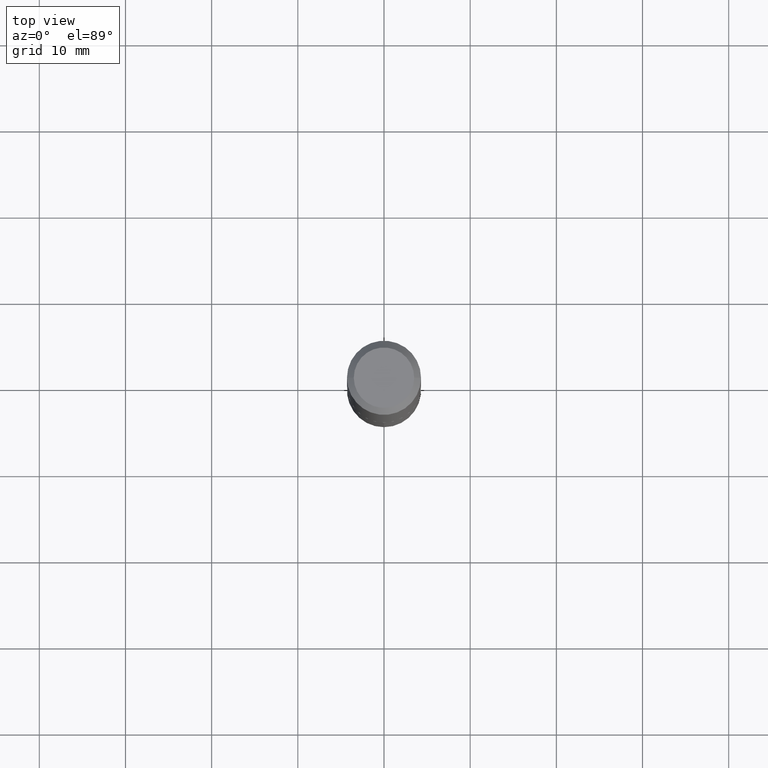
[diagram: clean part render]
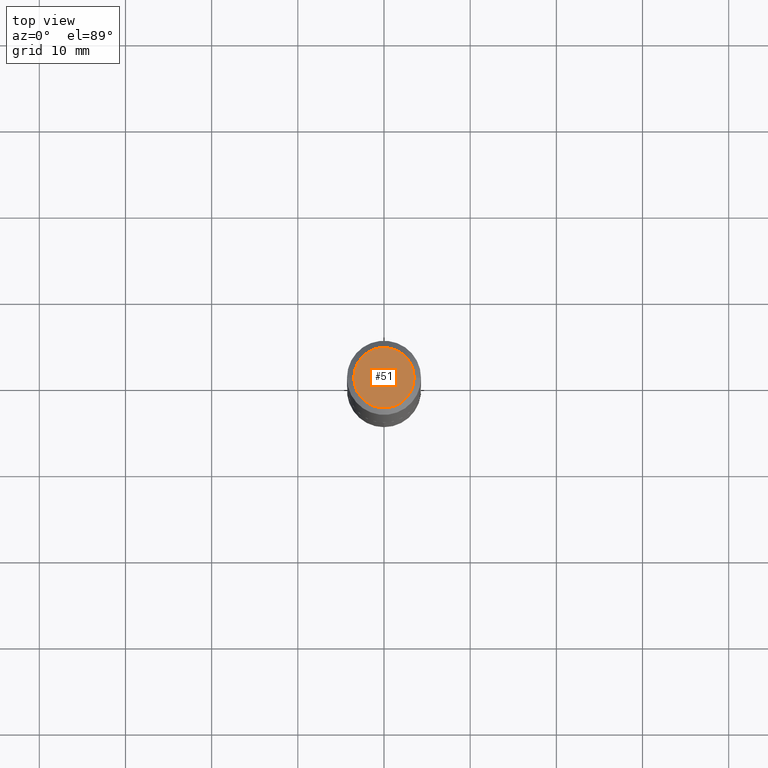
[diagram: same view with one face highlighted and labeled with its STEP entity id]
A machine part, top view. The second image highlights one B-rep face of the part: STEP entity #51.
In plain terms, the highlighted planar face has unit normal (0, -0, -1).
Its self-contained STEP definition (entity closure, byte-faithful):
#4 = VERTEX_POINT ( 'NONE', #101 ) ;
#17 = DIRECTION ( 'NONE',  ( -1.000000000000000000, 6.982962677686265922E-15, -4.876176775795935793E-29 ) ) ;
#23 = FACE_OUTER_BOUND ( 'NONE', #243, .T. ) ;
#51 = ADVANCED_FACE ( 'NONE', ( #23 ), #77, .F. ) ;
#75 = CARTESIAN_POINT ( 'NONE',  ( -5.989671091818699506E-48, 8.551662891794013634E-34, 2.449293598294725547E-19 ) ) ;
#77 = PLANE ( 'NONE',  #111 ) ;
#86 = DIRECTION ( 'NONE',  ( 1.000000000000000000, -6.982962677686266711E-15, 4.876184709317979001E-29 ) ) ;
#98 = AXIS2_PLACEMENT_3D ( 'NONE', #75, #168, #386 ) ;
#101 = CARTESIAN_POINT ( 'NONE',  ( 0.1380500000000000060, -1.108841425726964737E-15, 2.449293598367200216E-19 ) ) ;
#106 = EDGE_CURVE ( 'NONE', #265, #4, #248, .T. ) ;
#111 = AXIS2_PLACEMENT_3D ( 'NONE', #171, #225, #17 ) ;
#123 = ORIENTED_EDGE ( 'NONE', *, *, #173, .T. ) ;
#168 = DIRECTION ( 'NONE',  ( -2.445468806185136597E-29, 3.491481338843145583E-15, 1.000000000000000000 ) ) ;
#171 = CARTESIAN_POINT ( 'NONE',  ( -2.994835545909349753E-48, 4.275831445897006817E-34, 1.224646799147362773E-19 ) ) ;
#173 = EDGE_CURVE ( 'NONE', #4, #265, #340, .T. ) ;
#220 = CARTESIAN_POINT ( 'NONE',  ( -0.1380500000000000060, 1.018552393574012742E-15, 2.449293598225403624E-19 ) ) ;
#225 = DIRECTION ( 'NONE',  ( 2.438088387897960049E-29, -3.491481338843145188E-15, -1.000000000000000000 ) ) ;
#237 = DIRECTION ( 'NONE',  ( -2.445468806185136597E-29, 3.491481338843145583E-15, 1.000000000000000000 ) ) ;
#242 = CARTESIAN_POINT ( 'NONE',  ( -5.989671091818699506E-48, 8.551662891794013634E-34, 2.449293598294725547E-19 ) ) ;
#243 = EDGE_LOOP ( 'NONE', ( #268, #123 ) ) ;
#248 = CIRCLE ( 'NONE', #98, 0.1380500000000000060 ) ;
#260 = AXIS2_PLACEMENT_3D ( 'NONE', #242, #237, #86 ) ;
#265 = VERTEX_POINT ( 'NONE', #220 ) ;
#268 = ORIENTED_EDGE ( 'NONE', *, *, #106, .T. ) ;
#340 = CIRCLE ( 'NONE', #260, 0.1380500000000000060 ) ;
#386 = DIRECTION ( 'NONE',  ( 1.000000000000000000, -6.982962677686266711E-15, 4.876184709317979001E-29 ) ) ;